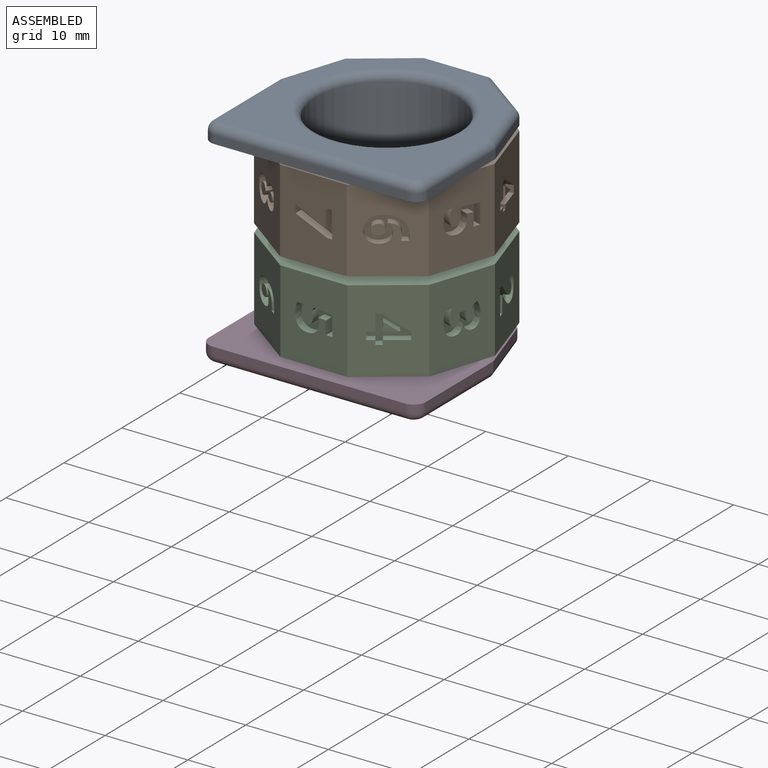
[diagram: assembled view]
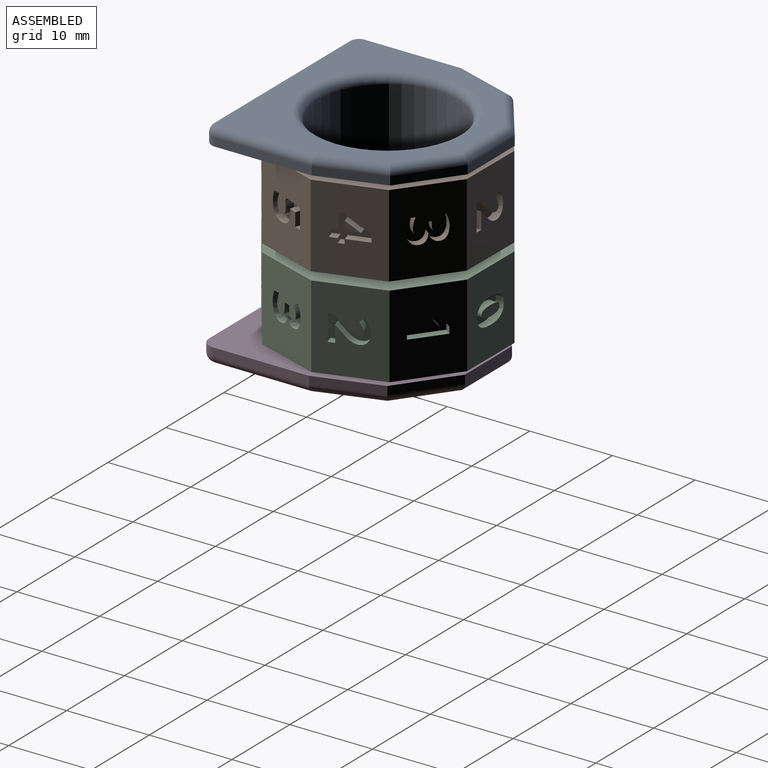
[diagram: assembled view, second angle]
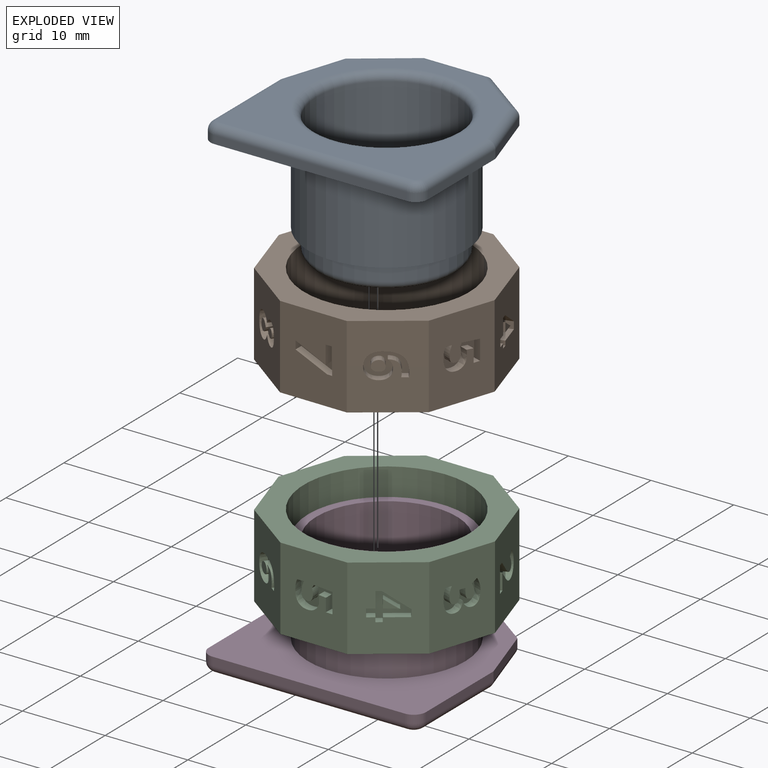
[diagram: exploded view]
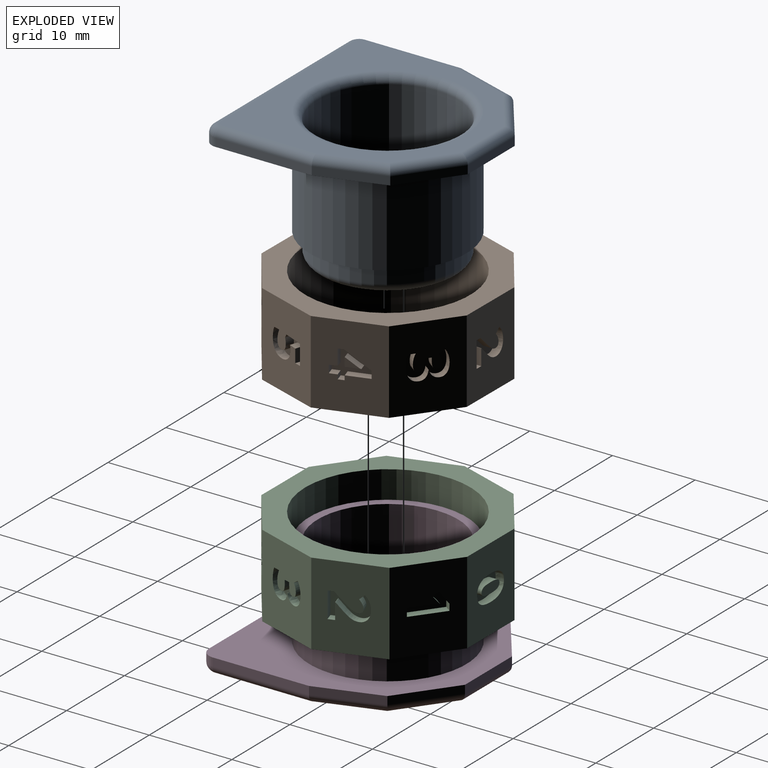
[diagram: exploded view, second angle]
ASSEMBLY  parts=4 mates=3
PART A: 30 faces, bbox 26.3x25.6x16 mm
  f0: cylinder r=8.5mm len=17mm, axis (0,0,-1), area 405.1mm2, adj f18,f19
  f1: plane 7.73x2.51mm, normal (0.95,0.31,0), area 8.1mm2, adj f2,f10,f11,f26
  f2: plane 6.57x4.77mm, normal (0.59,0.81,0), area 8.1mm2, adj f1,f3,f11,f24
  f3: plane 8.12x1mm, normal (0,1,0), area 8.1mm2, adj f2,f4,f11,f22
  f4: plane 6.57x4.77mm, normal (-0.59,0.81,0), area 8.1mm2, adj f3,f5,f11,f20
  f5: plane 7.73x2.51mm, normal (-0.95,0.31,0), area 8.1mm2, adj f4,f6,f11,f21
  f6: plane 11.64x1mm, normal (-1,0,0), area 11.6mm2, adj f5,f7,f11,f23
  f7: cylinder r=1.5mm len=1.5mm, axis (0,0,-1), area 2.4mm2, adj f6,f8,f11,f25
  f8: plane 23.29x1mm, normal (0,-1,0), area 23.3mm2, adj f7,f9,f11,f27
  f9: cylinder r=1.5mm len=1.5mm, axis (0,0,-1), area 2.4mm2, adj f8,f10,f11,f29
  f10: plane 11.64x1mm, normal (1,0,0), area 11.6mm2, adj f1,f9,f11,f28
  f11: plane 26.29x25.64mm, normal (0,0,1), area 314.8mm2, adj f1,f2,f3,f4,f5,f6,f7,f8
  f12: plane 24.29x23.64mm, normal (0,0,-1), area 226.1mm2, adj f19,f20,f21,f22,f23,f24,f25,f26
  f13: cylinder r=9.5mm len=19mm, axis (0,0,-1), area 656.6mm2, adj f11,f14
  f14: plane 19x19mm, normal (0,0,1), area 56.5mm2, adj f13,f15
  f15: cylinder r=8.5mm len=17mm, axis (0,0,-1), area 106.8mm2, adj f14,f17
  f16: cylinder r=7.5mm len=15mm, axis (0,0,-1), area 282.7mm2, adj f17,f18
  f17: torus R=7.5mm, axis (0,0,1), area 80.3mm2, adj f15,f16
  f18: torus R=7mm, axis (0,0,1), area 94.5mm2, adj f0,f16
  f19: torus R=9.5mm, axis (0,0,1), area 87.5mm2, adj f0,f12
  f20: cylinder r=1mm len=7.16mm, axis (-0.81,-0.59,0), area 12.4mm2, adj f4,f12,f21,f22
  f21: cylinder r=1mm len=8.03mm, axis (-0.31,-0.95,0), area 12.5mm2, adj f5,f12,f20,f23
  f22: cylinder r=1mm len=8.12mm, axis (-1,0,0), area 12.4mm2, adj f3,f12,f20,f24
  f23: cylinder r=1mm len=11.64mm, axis (0,-1,0), area 18.2mm2, adj f6,f12,f21,f25
  f24: cylinder r=1mm len=7.16mm, axis (-0.81,0.59,0), area 12.4mm2, adj f2,f12,f22,f26
  f25: torus R=0.5mm, axis (0,0,1), area 2.8mm2, adj f7,f12,f23,f27
  f26: cylinder r=1mm len=8.03mm, axis (-0.31,0.95,0), area 12.5mm2, adj f1,f12,f24,f28
  f27: cylinder r=1mm len=23.29mm, axis (1,0,0), area 36.6mm2, adj f8,f12,f25,f29
  f28: cylinder r=1mm len=11.64mm, axis (0,1,0), area 18.2mm2, adj f10,f12,f26,f29
  f29: torus R=0.5mm, axis (0,0,1), area 2.8mm2, adj f9,f12,f27,f28
PART B: 233 faces, bbox 26.2x25.7x10 mm
  f0: plane 10x7.93mm, normal (-0.98,0.22,0), area 75.2mm2, adj f1,f5,f11,f12,f225,f226,f227,f228
  f1: plane 10x7.45mm, normal (-0.92,-0.4,0), area 71.2mm2, adj f0,f2,f11,f12,f198,f199,f200,f201
  f2: plane 10x7mm, normal (-0.51,-0.86,0), area 73.4mm2, adj f1,f3,f11,f12,f177,f178,f179,f180
  f3: plane 10x8.08mm, normal (0.1,-1,0), area 72.8mm2, adj f2,f4,f11,f12,f157,f158,f159,f160
  f4: plane 10x6.08mm, normal (0.66,-0.75,0), area 73.7mm2, adj f3,f8,f11,f12,f129,f130,f131,f132
  f5: plane 10x6.08mm, normal (-0.66,0.75,0), area 69.9mm2, adj f0,f6,f11,f12,f95,f96,f97,f98
  f6: plane 10x8.08mm, normal (-0.1,1,0), area 71.2mm2, adj f5,f7,f11,f12,f67,f68,f69,f70
  f7: plane 10x7mm, normal (0.51,0.86,0), area 69.3mm2, adj f6,f9,f11,f12,f49,f50,f51,f52
  f8: plane 10x7.93mm, normal (0.98,-0.22,0), area 73.8mm2, adj f4,f9,f11,f12,f24,f25,f26,f27
  f9: plane 10x7.45mm, normal (0.92,0.4,0), area 76.1mm2, adj f7,f8,f11,f12,f13,f14,f15,f16
  f10: cylinder r=10mm len=20mm, axis (0,0,-1), area 628.3mm2, adj f11,f12
  f11: plane 26.16x25.67mm, normal (0,0,1), area 193.5mm2, adj f0,f1,f2,f3,f4,f5,f6,f7
  f12: plane 26.16x25.67mm, normal (0,0,-1), area 193.5mm2, adj f0,f1,f2,f3,f4,f5,f6,f7
  f13: plane 4.49x2.7mm, normal (0,0,1), area 4.5mm2, adj f9,f14,f22,f23
  f14: plane 0.92x0.78mm, normal (0.4,-0.92,0), area 0.8mm2, adj f9,f13,f15,f23
  f15: plane 1.45x1.44mm, normal (0.31,-0.72,-0.62), area 1.8mm2, adj f9,f14,f16,f23
  f16: plane 1.14x0.92mm, normal (-0.25,0.57,-0.78), area 0.7mm2, adj f9,f15,f17,f23
  f17: plane 1.08x0.78mm, normal (-0.31,0.71,0.63), area 0.7mm2, adj f9,f16,f18,f23
  f18: extruded ~1.04x0.68mm, area 0.4mm2, adj f9,f17,f19,f23
  f19: plane 1.1x0.83mm, normal (0.01,-0.03,-1), area 0.5mm2, adj f9,f18,f20,f23
  f20: plane 1.09x0.79mm, normal (0.01,-0.02,-1), area 0.4mm2, adj f9,f19,f21,f23
  f21: plane 2.77x1.95mm, normal (0,0,-1), area 2.6mm2, adj f9,f20,f22,f23
  f22: plane 0.94x0.92mm, normal (-0.4,0.92,0), area 0.9mm2, adj f9,f13,f21,f23
  f23: plane 4.09x2.21mm, normal (0.92,0.4,0), area 5.1mm2, adj f13,f14,f15,f16,f17,f18,f19,f20
  f24: plane 1.15x0.99mm, normal (0,0,1), area 0.8mm2, adj f8,f25,f47,f48
  f25: plane 1.94x0.98mm, normal (-0.22,-0.98,0), area 1.9mm2, adj f8,f24,f26,f48
  f26: plane 0.99x0.26mm, normal (0,0,1), area 0mm2, adj f8,f25,f27,f48
  f27: plane 1.09x0.74mm, normal (0.16,0.71,0.69), area 0.8mm2, adj f8,f26,f28,f48
  f28: extruded ~1.15x1.01mm, area 1.1mm2, adj f8,f27,f29,f48
  f29: extruded ~1.1x0.76mm, area 0.6mm2, adj f8,f28,f30,f48
  f30: extruded ~1.1x0.78mm, area 0.6mm2, adj f8,f29,f31,f48
  f31: extruded ~1.11x0.83mm, area 0.7mm2, adj f8,f30,f32,f48
  f32: extruded ~1.07x0.63mm, area 0.7mm2, adj f8,f31,f33,f48
  f33: extruded ~1.01x0.74mm, area 0.8mm2, adj f8,f32,f34,f48
  f34: extruded ~0.99x0.57mm, area 0.6mm2, adj f8,f33,f35,f48
  f35: extruded ~1.02x0.47mm, area 0.5mm2, adj f8,f34,f36,f48
  f36: extruded ~1.06x0.6mm, area 0.7mm2, adj f8,f35,f37,f48
  f37: plane 1.11x0.81mm, normal (0.14,0.63,-0.76), area 0.8mm2, adj f8,f36,f38,f48
  f38: extruded ~1.05x0.55mm, area 0.6mm2, adj f8,f37,f39,f48
  f39: extruded ~1x0.5mm, area 0.5mm2, adj f8,f38,f40,f48
  f40: extruded ~1.01x0.4mm, area 0.4mm2, adj f8,f39,f41,f48
  f41: extruded ~1.06x0.61mm, area 0.4mm2, adj f8,f40,f42,f48
  f42: extruded ~1.05x0.56mm, area 0.4mm2, adj f8,f41,f43,f48
  f43: extruded ~1.06x0.57mm, area 0.4mm2, adj f8,f42,f44,f48
  f44: extruded ~1.13x0.91mm, area 1mm2, adj f8,f43,f45,f48
  f45: plane 1.32x1.22mm, normal (-0.15,-0.69,-0.71), area 1.6mm2, adj f8,f44,f46,f48
  f46: plane 1.12x0.86mm, normal (0,0,-1), area 0.7mm2, adj f8,f45,f47,f48
  f47: plane 3.12x0.98mm, normal (0.22,0.98,0), area 3.1mm2, adj f8,f24,f46,f48
  f48: plane 4.42x3.13mm, normal (0.98,-0.22,0), area 7.4mm2, adj f24,f25,f26,f27,f28,f29,f30,f31
  f49: extruded ~1.99x1.73mm, area 1.8mm2, adj f7,f50,f64,f65
  f50: extruded ~1.17x1.16mm, area 1.4mm2, adj f7,f49,f51,f65
  f51: extruded ~1.18x1.15mm, area 1.4mm2, adj f7,f50,f52,f65
  f52: extruded ~2.01x1.74mm, area 1.8mm2, adj f7,f51,f53,f65
  f53: extruded ~1.98x1.73mm, area 1.8mm2, adj f7,f52,f54,f65
  f54: extruded ~1.16x1.16mm, area 1.4mm2, adj f7,f53,f55,f65
  f55: extruded ~1.18x1.15mm, area 1.4mm2, adj f7,f54,f64,f65
  f56: extruded ~1.52x1.46mm, area 1.2mm2, adj f57,f63,f65,f66
  f57: extruded ~1.04x0.82mm, area 0.6mm2, adj f56,f58,f65,f66
  f58: extruded ~1.04x0.82mm, area 0.6mm2, adj f57,f59,f65,f66
  f59: extruded ~1.52x1.46mm, area 1.2mm2, adj f58,f60,f65,f66
  f60: extruded ~1.52x1.46mm, area 1.2mm2, adj f59,f61,f65,f66
  f61: extruded ~1.04x0.82mm, area 0.6mm2, adj f60,f62,f65,f66
  f62: extruded ~1.04x0.81mm, area 0.6mm2, adj f61,f63,f65,f66
  f63: extruded ~1.52x1.46mm, area 1.2mm2, adj f56,f62,f65,f66
  f64: extruded ~2x1.74mm, area 1.8mm2, adj f7,f49,f55,f65
  f65: plane 3.96x3.12mm, normal (0.51,0.86,0), area 8.7mm2, adj f49,f50,f51,f52,f53,f54,f55,f56
  f66: plane 2.65x1.55mm, normal (0.51,0.86,0), area 3.2mm2, adj f56,f57,f58,f59,f60,f61,f62,f63
  f67: extruded ~1.14x1.1mm, area 1.1mm2, adj f6,f68,f92,f93
  f68: extruded ~1.06x0.77mm, area 0.9mm2, adj f6,f67,f69,f93
  f69: extruded ~1.02x0.87mm, area 0.9mm2, adj f6,f68,f70,f93
  f70: extruded ~1.11x1.04mm, area 1.2mm2, adj f6,f69,f71,f93
  f71: extruded ~1.23x1.11mm, area 1.2mm2, adj f6,f70,f72,f93
  f72: extruded ~1.13x1.1mm, area 1.1mm2, adj f6,f71,f73,f93
  f73: extruded ~1.03x0.92mm, area 1mm2, adj f6,f72,f74,f93
  f74: extruded ~1.01x0.58mm, area 0.6mm2, adj f6,f73,f75,f93
  f75: extruded ~1.03x0.5mm, area 0.6mm2, adj f6,f74,f76,f93
  f76: plane 1x0.1mm, normal (-1,-0.1,0), area 0mm2, adj f6,f75,f77,f93
  f77: extruded ~1.08x0.91mm, area 0.8mm2, adj f6,f76,f78,f93
  f78: extruded ~1.04x0.53mm, area 0.7mm2, adj f6,f77,f79,f93
  f79: extruded ~1.01x0.78mm, area 0.8mm2, adj f6,f78,f80,f93
  f80: extruded ~1x0.54mm, area 0.5mm2, adj f6,f79,f81,f93
  f81: plane 1.07x0.85mm, normal (0,0,-1), area 0.8mm2, adj f6,f80,f82,f93
  f82: extruded ~1x0.6mm, area 0.6mm2, adj f6,f81,f83,f93
  f83: extruded ~1.68x1.06mm, area 1.9mm2, adj f6,f82,f92,f93
  f84: extruded ~1.02x0.49mm, area 0.6mm2, adj f85,f91,f93,f94
  f85: extruded ~1.05x0.71mm, area 0.7mm2, adj f84,f86,f93,f94
  f86: extruded ~1.04x0.53mm, area 0.5mm2, adj f85,f87,f93,f94
  f87: extruded ~1.01x0.49mm, area 0.5mm2, adj f86,f88,f93,f94
  f88: extruded ~1.01x0.45mm, area 0.5mm2, adj f87,f89,f93,f94
  f89: extruded ~1.05x0.61mm, area 0.5mm2, adj f88,f90,f93,f94
  f90: extruded ~1.05x0.67mm, area 0.6mm2, adj f89,f91,f93,f94
  f91: extruded ~1.02x0.46mm, area 0.5mm2, adj f84,f90,f93,f94
  f92: extruded ~2.06x1.19mm, area 2.1mm2, adj f6,f67,f83,f93
  f93: plane 4.55x3.15mm, normal (-0.1,1,0), area 8.5mm2, adj f67,f68,f69,f70,f71,f72,f73,f74
  f94: plane 1.48x1.3mm, normal (-0.1,1,0), area 1.6mm2, adj f84,f85,f86,f87,f88,f89,f90,f91
  f95: extruded ~1.03x0.94mm, area 1.1mm2, adj f5,f96,f125,f126
  f96: extruded ~1.26x1.24mm, area 0.9mm2, adj f5,f95,f97,f126
  f97: extruded ~1.15x1.11mm, area 0.6mm2, adj f5,f96,f98,f126
  f98: extruded ~1.09x1.05mm, area 0.8mm2, adj f5,f97,f99,f126
  f99: extruded ~1.1x1.05mm, area 0.8mm2, adj f5,f98,f100,f126
  f100: extruded ~1.2x1.17mm, area 0.7mm2, adj f5,f99,f101,f126
  f101: extruded ~1.33x1.32mm, area 1mm2, adj f5,f100,f102,f126
  f102: extruded ~1.15x0.96mm, area 1.2mm2, adj f5,f101,f103,f126
  f103: extruded ~1.13x0.97mm, area 1.2mm2, adj f5,f102,f104,f126
  f104: extruded ~1.33x1.32mm, area 1mm2, adj f5,f103,f105,f126
  f105: extruded ~1.17x1.14mm, area 0.7mm2, adj f5,f104,f106,f126
  f106: extruded ~1.12x1.08mm, area 0.9mm2, adj f5,f105,f107,f126
  f107: extruded ~1.06x1.02mm, area 0.8mm2, adj f5,f106,f108,f126
  f108: extruded ~1.15x1.12mm, area 0.6mm2, adj f5,f107,f109,f126
  f109: extruded ~1.27x1.25mm, area 0.9mm2, adj f5,f108,f125,f126
  f110: extruded ~1.25x1.23mm, area 1.1mm2, adj f111,f123,f126,f128
  f111: extruded ~1x0.95mm, area 0.7mm2, adj f110,f112,f126,f128
  f112: extruded ~1x0.95mm, area 0.4mm2, adj f111,f113,f126,f128
  f113: extruded ~1.01x0.96mm, area 0.4mm2, adj f112,f114,f126,f128
  f114: extruded ~0.85x0.78mm, area 0.6mm2, adj f113,f115,f126,f128
  f115: extruded ~0.85x0.77mm, area 0.5mm2, adj f114,f123,f126,f128
  f116: extruded ~0.83x0.76mm, area 0.4mm2, adj f117,f124,f126,f127
  f117: extruded ~0.97x0.91mm, area 0.4mm2, adj f116,f118,f126,f127
  f118: extruded ~0.97x0.92mm, area 0.4mm2, adj f117,f119,f126,f127
  f119: extruded ~0.94x0.88mm, area 0.5mm2, adj f118,f120,f126,f127
  f120: extruded ~0.95x0.89mm, area 0.5mm2, adj f119,f121,f126,f127
  f121: extruded ~0.97x0.91mm, area 0.4mm2, adj f120,f122,f126,f127
  f122: extruded ~0.97x0.91mm, area 0.4mm2, adj f121,f124,f126,f127
  f123: extruded ~1.02x0.97mm, area 0.5mm2, adj f110,f115,f126,f128
  f124: extruded ~0.83x0.76mm, area 0.4mm2, adj f116,f122,f126,f127
  f125: extruded ~1.03x0.94mm, area 1.1mm2, adj f5,f95,f109,f126
  f126: plane 3.43x3.13mm, normal (-0.66,0.75,0), area 9.1mm2, adj f95,f96,f97,f98,f99,f100,f101,f102
  f127: plane 1.08x0.81mm, normal (-0.66,0.75,0), area 0.9mm2, adj f116,f117,f118,f119,f120,f121,f122,f124
  f128: plane 1.38x0.98mm, normal (-0.66,0.75,0), area 1.3mm2, adj f110,f111,f112,f113,f114,f115,f123
  f129: extruded ~1.27x1.25mm, area 0.9mm2, adj f4,f130,f155,f156
  f130: extruded ~1.09x0.93mm, area 1.1mm2, adj f4,f129,f131,f156
  f131: extruded ~1.46x1.04mm, area 1.5mm2, adj f4,f130,f132,f156
  f132: plane 1.18x1.15mm, normal (0.42,0.37,-0.83), area 0.8mm2, adj f4,f131,f133,f156
  f133: extruded ~0.92x0.85mm, area 0.6mm2, adj f4,f132,f134,f156
  f134: extruded ~0.8x0.72mm, area 0.5mm2, adj f4,f133,f135,f156
  f135: extruded ~1.08x1.04mm, area 0.9mm2, adj f4,f134,f136,f156
  f136: extruded ~1.06x1.01mm, area 0.6mm2, adj f4,f135,f137,f156
  f137: extruded ~0.84x0.77mm, area 0.8mm2, adj f4,f136,f138,f156
  f138: plane 0.75x0.66mm, normal (-0.75,-0.66,0), area 0.3mm2, adj f4,f137,f139,f156
  f139: plane 1.23x1.21mm, normal (0,0,-1), area 0.7mm2, adj f4,f138,f140,f156
  f140: plane 0.75x0.66mm, normal (0.75,0.66,0), area 0.3mm2, adj f4,f139,f141,f156
  f141: extruded ~0.84x0.82mm, area 0.8mm2, adj f4,f140,f142,f156
  f142: extruded ~1.04x1mm, area 0.5mm2, adj f4,f141,f143,f156
  f143: extruded ~1.09x1.05mm, area 0.6mm2, adj f4,f142,f144,f156
  f144: extruded ~0.85x0.78mm, area 0.7mm2, adj f4,f143,f145,f156
  f145: extruded ~0.8x0.73mm, area 0.6mm2, adj f4,f144,f146,f156
  f146: extruded ~0.89x0.82mm, area 0.6mm2, adj f4,f145,f147,f156
  f147: plane 1.28x1.26mm, normal (0,0,-1), area 0.8mm2, adj f4,f146,f148,f156
  f148: extruded ~1.29x0.91mm, area 1.3mm2, adj f4,f147,f149,f156
  f149: extruded ~1.33x0.99mm, area 1.4mm2, adj f4,f148,f150,f156
  f150: extruded ~1.41x1.41mm, area 1.1mm2, adj f4,f149,f151,f156
  f151: extruded ~1.22x1.19mm, area 0.8mm2, adj f4,f150,f152,f156
  f152: extruded ~0.97x0.91mm, area 0.9mm2, adj f4,f151,f153,f156
  f153: plane 0.76x0.68mm, normal (0,0,1), area 0mm2, adj f4,f152,f154,f156
  f154: extruded ~1.02x0.97mm, area 0.8mm2, adj f4,f153,f155,f156
  f155: extruded ~1.22x1.2mm, area 0.8mm2, adj f4,f129,f154,f156
  f156: plane 3.43x3.09mm, normal (0.66,-0.75,0), area 7.5mm2, adj f129,f130,f131,f132,f133,f134,f135,f136
  f157: plane 1.07x0.83mm, normal (0,0,1), area 0.7mm2, adj f3,f158,f174,f175
  f158: plane 1x0.54mm, normal (-1,-0.1,0), area 0.5mm2, adj f3,f157,f159,f175
  f159: plane 2.89x1.27mm, normal (0,0,1), area 2.8mm2, adj f3,f158,f160,f175
  f160: plane 1x0.87mm, normal (-1,-0.1,0), area 0.9mm2, adj f3,f159,f161,f175
  f161: plane 2.96x1.96mm, normal (-0.56,-0.05,-0.83), area 3.5mm2, adj f3,f160,f162,f175
  f162: plane 1.06x0.75mm, normal (0,0,-1), area 0.7mm2, adj f3,f161,f163,f175
  f163: plane 1.9x1mm, normal (1,0.1,0), area 1.9mm2, adj f3,f162,f164,f175
  f164: plane 1.09x1.02mm, normal (0,0,-1), area 0.9mm2, adj f3,f163,f165,f175
  f165: plane 1x0.92mm, normal (1,0.1,0), area 0.9mm2, adj f3,f164,f166,f175
  f166: plane 1.09x1.02mm, normal (0,0,1), area 0.9mm2, adj f3,f165,f174,f175
  f167: plane 1.07x1mm, normal (-1,-0.1,0), area 1.1mm2, adj f168,f173,f175,f176
  f168: plane 1.33x1.12mm, normal (0.55,0.05,0.83), area 1.5mm2, adj f167,f169,f175,f176
  f169: extruded ~1.04x0.58mm, area 0.6mm2, adj f168,f170,f175,f176
  f170: plane 1x0.1mm, normal (1,0.1,0), area 0mm2, adj f169,f171,f175,f176
  f171: extruded ~1.04x0.51mm, area 0.4mm2, adj f170,f172,f175,f176
  f172: extruded ~1.05x0.64mm, area 0.5mm2, adj f171,f173,f175,f176
  f173: plane 1.07x0.85mm, normal (0,0,-1), area 0.8mm2, adj f167,f172,f175,f176
  f174: plane 1x0.54mm, normal (1,0.1,0), area 0.5mm2, adj f3,f157,f166,f175
  f175: plane 4.44x3.36mm, normal (0.1,-1,0), area 7.5mm2, adj f157,f158,f159,f160,f161,f162,f163,f164
  f176: plane 1.72x1.11mm, normal (0.1,-1,0), area 0.9mm2, adj f167,f168,f169,f170,f171,f172,f173
  f177: extruded ~0.88x0.54mm, area 0.5mm2, adj f2,f178,f196,f197
  f178: plane 0.87x0.53mm, normal (-0.85,0.5,-0.2), area 0.1mm2, adj f2,f177,f179,f197
  f179: plane 1.31x1.26mm, normal (0.08,-0.05,1), area 0.9mm2, adj f2,f178,f180,f197
  f180: plane 1.59x0.86mm, normal (0.86,-0.51,0), area 1.6mm2, adj f2,f179,f181,f197
  f181: plane 1.27x1.2mm, normal (0,0,1), area 0.8mm2, adj f2,f180,f182,f197
  f182: plane 2.42x0.86mm, normal (-0.86,0.51,0), area 2.4mm2, adj f2,f181,f183,f197
  f183: plane 2.47x2.01mm, normal (-0.06,0.04,-1), area 2.3mm2, adj f2,f182,f184,f197
  f184: plane 0.96x0.68mm, normal (0.76,-0.45,-0.47), area 0.4mm2, adj f2,f183,f185,f197
  f185: extruded ~0.9x0.57mm, area 0.3mm2, adj f2,f184,f186,f197
  f186: extruded ~0.88x0.53mm, area 0.4mm2, adj f2,f185,f187,f197
  f187: extruded ~1.2x1.09mm, area 1.3mm2, adj f2,f186,f188,f197
  f188: extruded ~1.22x1.12mm, area 1.3mm2, adj f2,f187,f189,f197
  f189: extruded ~0.9x0.61mm, area 0.6mm2, adj f2,f188,f190,f197
  f190: extruded ~0.97x0.69mm, area 0.6mm2, adj f2,f189,f191,f197
  f191: plane 1.28x1.21mm, normal (0,0,-1), area 0.8mm2, adj f2,f190,f192,f197
  f192: extruded ~1.2x0.98mm, area 1.2mm2, adj f2,f191,f193,f197
  f193: extruded ~1.32x1.07mm, area 1.4mm2, adj f2,f192,f194,f197
  f194: extruded ~1.5x1.45mm, area 1.3mm2, adj f2,f193,f195,f197
  f195: extruded ~1.37x1.36mm, area 1.1mm2, adj f2,f194,f196,f197
  f196: extruded ~1.05x1.03mm, area 1.1mm2, adj f2,f177,f195,f197
  f197: plane 3.9x2.98mm, normal (-0.51,-0.86,0), area 7.9mm2, adj f177,f178,f179,f180,f181,f182,f183,f184
  f198: extruded ~1.37x1.34mm, area 1.1mm2, adj f1,f199,f222,f223
  f199: extruded ~1.18x1.01mm, area 0.9mm2, adj f1,f198,f200,f223
  f200: extruded ~1.01x0.86mm, area 0.9mm2, adj f1,f199,f201,f223
  f201: extruded ~1.12x1.08mm, area 1.2mm2, adj f1,f200,f202,f223
  f202: extruded ~1.44x1.37mm, area 1.2mm2, adj f1,f201,f203,f223
  f203: extruded ~1.35x1.33mm, area 1.1mm2, adj f1,f202,f204,f223
  f204: extruded ~1.07x0.94mm, area 1mm2, adj f1,f203,f205,f223
  f205: extruded ~1.12x0.97mm, area 1.2mm2, adj f1,f204,f206,f223
  f206: plane 0.92x0.4mm, normal (-0.4,0.92,0), area 0mm2, adj f1,f205,f207,f223
  f207: extruded ~1.24x1.15mm, area 0.8mm2, adj f1,f206,f208,f223
  f208: extruded ~1.09x0.8mm, area 0.6mm2, adj f1,f207,f209,f223
  f209: extruded ~0.98x0.79mm, area 0.8mm2, adj f1,f208,f210,f223
  f210: extruded ~0.94x0.54mm, area 0.5mm2, adj f1,f209,f211,f223
  f211: plane 1.22x1.09mm, normal (0,0,1), area 0.8mm2, adj f1,f210,f212,f223
  f212: extruded ~0.94x0.6mm, area 0.6mm2, adj f1,f211,f213,f223
  f213: extruded ~1.68x1.18mm, area 1.9mm2, adj f1,f212,f222,f223
  f214: extruded ~1.02x0.63mm, area 0.6mm2, adj f215,f221,f223,f224
  f215: extruded ~1.16x0.96mm, area 0.7mm2, adj f214,f216,f223,f224
  f216: extruded ~1.09x0.8mm, area 0.5mm2, adj f215,f217,f223,f224
  f217: extruded ~0.99x0.57mm, area 0.5mm2, adj f216,f218,f223,f224
  f218: extruded ~0.99x0.57mm, area 0.5mm2, adj f217,f219,f223,f224
  f219: extruded ~1.12x0.87mm, area 0.5mm2, adj f218,f220,f223,f224
  f220: extruded ~1.15x0.93mm, area 0.6mm2, adj f219,f221,f223,f224
  f221: extruded ~1x0.59mm, area 0.5mm2, adj f214,f220,f223,f224
  f222: extruded ~2.21x1.7mm, area 2.1mm2, adj f1,f198,f213,f223
  f223: plane 4.19x3.15mm, normal (-0.92,-0.4,0), area 8.5mm2, adj f198,f199,f200,f201,f202,f203,f204,f205
  f224: plane 1.36x1.3mm, normal (-0.92,-0.4,0), area 1.6mm2, adj f214,f215,f216,f217,f218,f219,f220,f221
  f225: plane 0.99x0.98mm, normal (-0.22,-0.98,0), area 1mm2, adj f0,f226,f231,f232
  f226: plane 3.99x1.81mm, normal (-0.09,-0.39,0.92), area 4.2mm2, adj f0,f225,f227,f232
  f227: plane 1.1x0.79mm, normal (0,0,1), area 0.6mm2, adj f0,f226,f228,f232
  f228: plane 3.2x0.98mm, normal (0.22,0.98,0), area 3.2mm2, adj f0,f227,f229,f232
  f229: plane 1.15x0.99mm, normal (0,0,-1), area 0.8mm2, adj f0,f228,f230,f232
  f230: plane 2.2x0.98mm, normal (-0.22,-0.98,0), area 2.2mm2, adj f0,f229,f231,f232
  f231: plane 3.79x1.77mm, normal (0.09,0.41,-0.91), area 4mm2, adj f0,f225,f230,f232
  f232: plane 4.35x3.2mm, normal (-0.98,0.22,0), area 6mm2, adj f225,f226,f227,f228,f229,f230,f231
PART C: same geometry as B
PART D: 26 faces, bbox 26.3x25.6x13 mm
  f0: plane 7.73x2.51mm, normal (0.95,0.31,0), area 8.1mm2, adj f1,f9,f10,f22
  f1: plane 6.57x4.77mm, normal (0.59,0.81,0), area 8.1mm2, adj f0,f2,f10,f20
  f2: plane 8.12x1mm, normal (0,1,0), area 8.1mm2, adj f1,f3,f10,f18
  f3: plane 6.57x4.77mm, normal (-0.59,0.81,0), area 8.1mm2, adj f2,f4,f10,f16
  f4: plane 7.73x2.51mm, normal (-0.95,0.31,0), area 8.1mm2, adj f3,f5,f10,f17
  f5: plane 11.64x1mm, normal (-1,0,0), area 11.6mm2, adj f4,f6,f10,f19
  f6: cylinder r=1.5mm len=1.5mm, axis (0,0,-1), area 2.4mm2, adj f5,f7,f10,f21
  f7: plane 23.29x1mm, normal (0,-1,0), area 23.3mm2, adj f6,f8,f10,f23
  f8: cylinder r=1.5mm len=1.5mm, axis (0,0,-1), area 2.4mm2, adj f7,f9,f10,f25
  f9: plane 11.64x1mm, normal (1,0,0), area 11.6mm2, adj f0,f8,f10,f24
  f10: plane 26.29x25.64mm, normal (0,0,1), area 314.8mm2, adj f0,f1,f2,f3,f4,f5,f6,f7
  f11: plane 24.29x23.64mm, normal (0,0,-1), area 226.1mm2, adj f15,f16,f17,f18,f19,f20,f21,f22
  f12: cylinder r=9.5mm len=19mm, axis (0,0,-1), area 656.6mm2, adj f10,f14
  f13: cylinder r=8.5mm len=17mm, axis (0,0,-1), area 640.9mm2, adj f14,f15
  f14: plane 19x19mm, normal (0,0,1), area 56.5mm2, adj f12,f13
  f15: torus R=9.5mm, axis (0,0,1), area 87.5mm2, adj f11,f13
  f16: cylinder r=1mm len=7.16mm, axis (-0.81,-0.59,0), area 12.4mm2, adj f3,f11,f17,f18
  f17: cylinder r=1mm len=8.03mm, axis (-0.31,-0.95,0), area 12.5mm2, adj f4,f11,f16,f19
  f18: cylinder r=1mm len=8.12mm, axis (-1,0,0), area 12.4mm2, adj f2,f11,f16,f20
  f19: cylinder r=1mm len=11.64mm, axis (0,-1,0), area 18.2mm2, adj f5,f11,f17,f21
  f20: cylinder r=1mm len=7.16mm, axis (-0.81,0.59,0), area 12.4mm2, adj f1,f11,f18,f22
  f21: torus R=0.5mm, axis (0,0,1), area 2.8mm2, adj f6,f11,f19,f23
  f22: cylinder r=1mm len=8.03mm, axis (-0.31,0.95,0), area 12.5mm2, adj f0,f11,f20,f24
  f23: cylinder r=1mm len=23.29mm, axis (1,0,0), area 36.6mm2, adj f7,f11,f21,f25
  f24: cylinder r=1mm len=11.64mm, axis (0,1,0), area 18.2mm2, adj f9,f11,f22,f25
  f25: torus R=0.5mm, axis (0,0,1), area 2.8mm2, adj f8,f11,f23,f24
PLACE A rot(axis=(0,-1,0),180deg) t=(0.81,-0.04,26)mm
PLACE B rot(axis=(0,0,1),101.9deg) t=(-36.95,0,13.5)mm
PLACE C rot(axis=(0,0,1),30.1deg) t=(-36.95,0,2.5)mm
PLACE D at identity fixed
MATE fastened A.f0 <-> D.f12  axis (0,0,1) through (-36.95,0,13)mm
MATE revolute D.f12 <-> C.f10  axis (0,0,-1) through (-36.95,0,13)mm
MATE revolute B.f10 <-> A.f0  axis (0,0,-1) through (-36.95,0,13.5)mm
